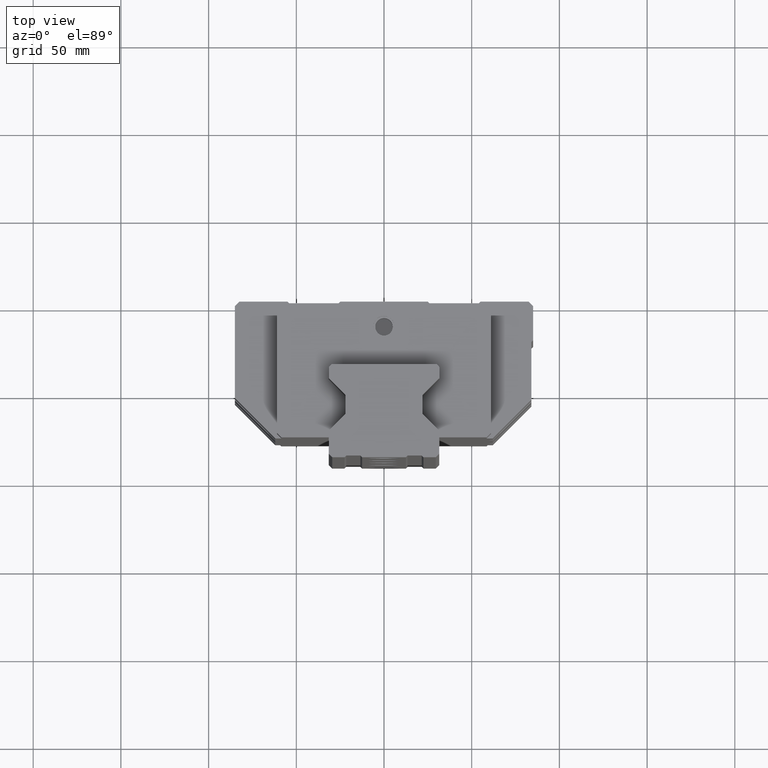
[diagram: clean part render]
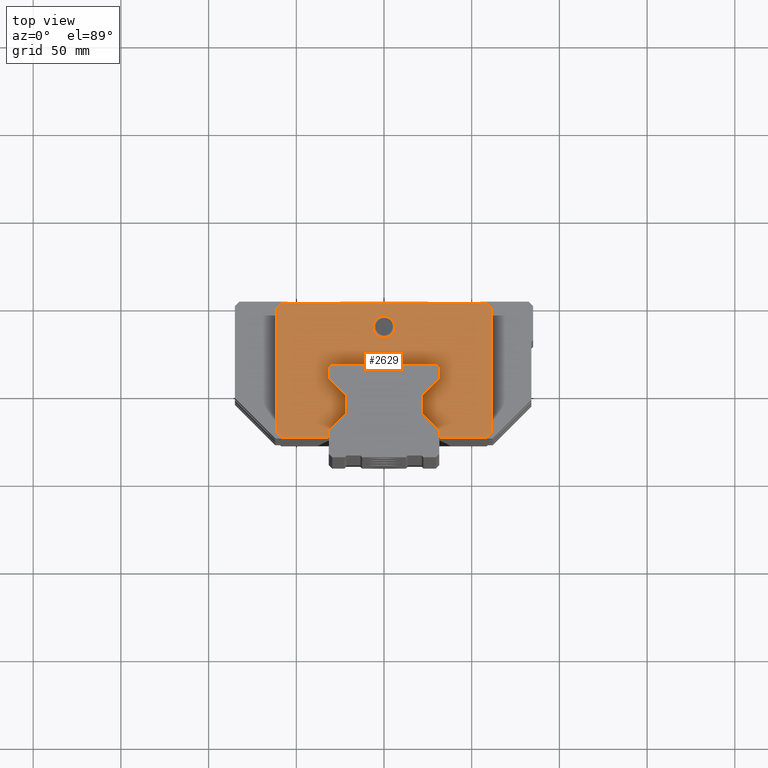
[diagram: same view with one face highlighted and labeled with its STEP entity id]
A machine part, top view. The second image highlights one B-rep face of the part: STEP entity #2629.
In plain terms, the highlighted planar face has unit normal (0, 0, 1).
Its self-contained STEP definition (entity closure, byte-faithful):
#197=DIRECTION('',(-1.162706424973E-14,-1.E0,0.E0));
#198=VECTOR('',#197,7.1499992E1);
#199=CARTESIAN_POINT('',(-6.100006E1,-3.999999999996E0,1.475E2));
#200=LINE('',#199,#198);
#257=DIRECTION('',(-1.E0,3.914247843230E-14,0.E0));
#258=VECTOR('',#257,1.17E2);
#259=CARTESIAN_POINT('',(5.849994E1,-1.500000000002E0,1.475E2));
#260=LINE('',#259,#258);
#409=DIRECTION('',(7.071067811866E-1,-7.071067811865E-1,0.E0));
#410=VECTOR('',#409,3.535533905932E0);
#411=CARTESIAN_POINT('',(5.849994E1,-1.500000000002E0,1.475E2));
#412=LINE('',#411,#410);
#413=DIRECTION('',(-7.071067811865E-1,-7.071067811866E-1,0.E0));
#414=VECTOR('',#413,3.535533905931E0);
#415=CARTESIAN_POINT('',(6.099994E1,-7.5499992E1,1.475E2));
#416=LINE('',#415,#414);
#417=DIRECTION('',(-7.071067693190E-1,7.071067930541E-1,0.E0));
#418=VECTOR('',#417,1.343502940587E1);
#419=CARTESIAN_POINT('',(3.149994018310E1,-7.478096104164E1,1.475E2));
#420=LINE('',#419,#418);
#421=DIRECTION('',(7.071067808142E-1,7.071067815589E-1,0.E0));
#422=VECTOR('',#421,1.343502873807E1);
#423=CARTESIAN_POINT('',(2.199993994421E1,-5.431902284949E1,1.475E2));
#424=LINE('',#423,#422);
#425=CARTESIAN_POINT('',(3.049994E1,-3.891421356237E1,1.475E2));
#426=DIRECTION('',(0.E0,0.E0,1.E0));
#427=DIRECTION('',(9.999999999991E-1,1.315158655757E-6,0.E0));
#428=AXIS2_PLACEMENT_3D('',#425,#426,#427);
#430=DIRECTION('',(-7.071098320872E-1,7.071037302727E-1,3.329743338022E-14));
#431=VECTOR('',#430,1.707141154446E0);
#432=CARTESIAN_POINT('',(3.120704678120E1,-3.820710678120E1,1.475E2));
#433=LINE('',#432,#431);
#434=DIRECTION('',(-7.071037303086E-1,-7.071098320513E-1,-3.329705027528E-14));
#435=VECTOR('',#434,1.707160796253E0);
#436=CARTESIAN_POINT('',(-3.000002701392E1,-3.699995659726E1,1.475E2));
#437=LINE('',#436,#435);
#438=CARTESIAN_POINT('',(-3.050006E1,-3.891421356237E1,1.475E2));
#439=DIRECTION('',(0.E0,0.E0,1.E0));
#440=DIRECTION('',(-7.071067811722E-1,7.071067812009E-1,0.E0));
#441=AXIS2_PLACEMENT_3D('',#438,#439,#440);
#443=DIRECTION('',(7.071067808141E-1,-7.071067815590E-1,0.E0));
#444=VECTOR('',#443,1.343502873807E1);
#445=CARTESIAN_POINT('',(-3.150005986533E1,-4.481902291836E1,1.475E2));
#446=LINE('',#445,#444);
#447=DIRECTION('',(-7.071068016126E-1,-7.071067607605E-1,0.E0));
#448=VECTOR('',#447,1.343503046467E1);
#449=CARTESIAN_POINT('',(-2.200005994421E1,-6.528096048387E1,1.475E2));
#450=LINE('',#449,#448);
#451=DIRECTION('',(-7.071067811866E-1,7.071067811865E-1,0.E0));
#452=VECTOR('',#451,3.535533905933E0);
#453=CARTESIAN_POINT('',(-5.850006E1,-7.7999992E1,1.475E2));
#454=LINE('',#453,#452);
#455=DIRECTION('',(7.071067811865E-1,7.071067811865E-1,0.E0));
#456=VECTOR('',#455,3.535533905931E0);
#457=CARTESIAN_POINT('',(-6.100006E1,-3.999999999996E0,1.475E2));
#458=LINE('',#457,#456);
#459=CARTESIAN_POINT('',(1.044060307818E-12,-1.5E1,1.475E2));
#460=DIRECTION('',(0.E0,0.E0,1.E0));
#461=DIRECTION('',(-9.999999999995E-1,1.041666951664E-6,0.E0));
#462=AXIS2_PLACEMENT_3D('',#459,#460,#461);
#464=CARTESIAN_POINT('',(1.044060307818E-12,-1.5E1,1.475E2));
#465=DIRECTION('',(0.E0,0.E0,1.E0));
#466=DIRECTION('',(9.999999999995E-1,-1.041666951949E-6,0.E0));
#467=AXIS2_PLACEMENT_3D('',#464,#465,#466);
#481=DIRECTION('',(2.037220659141E-14,1.E0,0.E0));
#482=VECTOR('',#481,7.1499992E1);
#483=CARTESIAN_POINT('',(6.099994E1,-7.5499992E1,1.475E2));
#484=LINE('',#483,#482);
#533=DIRECTION('',(1.E0,-1.631616645668E-14,0.E0));
#534=VECTOR('',#533,2.700000011282E1);
#535=CARTESIAN_POINT('',(3.149993988718E1,-7.7999992E1,1.475E2));
#536=LINE('',#535,#534);
#563=DIRECTION('',(-9.193066912146E-8,-1.E0,-1.765854991648E-14));
#564=VECTOR('',#563,3.219030958356E0);
#565=CARTESIAN_POINT('',(3.149994018310E1,-7.478096104164E1,1.475E2));
#566=LINE('',#565,#564);
#579=DIRECTION('',(5.866126932214E-14,-1.E0,0.E0));
#580=VECTOR('',#579,1.096193763438E1);
#581=CARTESIAN_POINT('',(2.199993994421E1,-5.431902284949E1,1.475E2));
#582=LINE('',#581,#580);
#595=DIRECTION('',(-1.791974412617E-8,-1.E0,0.E0));
#596=VECTOR('',#595,5.904809830910E0);
#597=CARTESIAN_POINT('',(3.149993997114E1,-3.891421308745E1,1.475E2));
#598=LINE('',#597,#596);
#647=DIRECTION('',(9.999999999999E-1,-4.050925794783E-7,0.E0));
#648=VECTOR('',#647,5.999993750005E1);
#649=CARTESIAN_POINT('',(-3.000002701392E1,-3.699995659726E1,1.475E2));
#650=LINE('',#649,#648);
#719=DIRECTION('',(-1.791957675257E-8,1.E0,0.E0));
#720=VECTOR('',#719,5.904809867457E0);
#721=CARTESIAN_POINT('',(-3.150005986533E1,-4.481902291836E1,1.475E2));
#722=LINE('',#721,#720);
#735=DIRECTION('',(-5.250345652037E-14,1.E0,0.E0));
#736=VECTOR('',#735,1.096193763438E1);
#737=CARTESIAN_POINT('',(-2.200005994421E1,-6.528096048387E1,1.475E2));
#738=LINE('',#737,#736);
#751=DIRECTION('',(-6.248479128125E-7,9.999999999998E-1,2.648782746519E-14));
#752=VECTOR('',#751,3.219030643538E0);
#753=CARTESIAN_POINT('',(-3.150005935425E1,-7.7999992E1,1.475E2));
#754=LINE('',#753,#752);
#793=DIRECTION('',(1.E0,1.157921467619E-14,0.E0));
#794=VECTOR('',#793,2.700000064575E1);
#795=CARTESIAN_POINT('',(-5.850006E1,-7.7999992E1,1.475E2));
#796=LINE('',#795,#794);
#1713=CARTESIAN_POINT('',(-3.150005935425E1,-7.7999992E1,1.475E2));
#1714=VERTEX_POINT('',#1713);
#1727=CARTESIAN_POINT('',(-5.850006E1,-7.7999992E1,1.475E2));
#1728=VERTEX_POINT('',#1727);
#1729=CARTESIAN_POINT('',(-3.150006136565E1,-7.478096135646E1,1.475E2));
#1730=VERTEX_POINT('',#1729);
#1731=CARTESIAN_POINT('',(-2.200005994421E1,-6.528096048387E1,1.475E2));
#1732=VERTEX_POINT('',#1731);
#1733=CARTESIAN_POINT('',(-2.200005994421E1,-5.431902284949E1,1.475E2));
#1734=VERTEX_POINT('',#1733);
#1735=CARTESIAN_POINT('',(-3.150005986533E1,-4.481902291836E1,1.475E2));
#1736=VERTEX_POINT('',#1735);
#1741=CARTESIAN_POINT('',(-3.150005997114E1,-3.891421305091E1,1.475E2));
#1742=VERTEX_POINT('',#1741);
#1751=CARTESIAN_POINT('',(-3.120716678117E1,-3.820710678117E1,1.475E2));
#1752=VERTEX_POINT('',#1751);
#1757=CARTESIAN_POINT('',(-3.000002701392E1,-3.699995659726E1,1.475E2));
#1758=VERTEX_POINT('',#1757);
#1759=CARTESIAN_POINT('',(2.999991048613E1,-3.699998090279E1,1.475E2));
#1760=VERTEX_POINT('',#1759);
#1809=CARTESIAN_POINT('',(3.149993988718E1,-7.7999992E1,1.475E2));
#1810=VERTEX_POINT('',#1809);
#1811=CARTESIAN_POINT('',(5.849994E1,-7.7999992E1,1.475E2));
#1812=VERTEX_POINT('',#1811);
#1823=CARTESIAN_POINT('',(3.149994018310E1,-7.478096104164E1,1.475E2));
#1824=VERTEX_POINT('',#1823);
#1825=CARTESIAN_POINT('',(2.199993994421E1,-6.528096048387E1,1.475E2));
#1826=VERTEX_POINT('',#1825);
#1827=CARTESIAN_POINT('',(2.199993994421E1,-5.431902284949E1,1.475E2));
#1828=VERTEX_POINT('',#1827);
#1829=CARTESIAN_POINT('',(3.149993986533E1,-4.481902291836E1,1.475E2));
#1830=VERTEX_POINT('',#1829);
#1839=CARTESIAN_POINT('',(3.149993997114E1,-3.891421308745E1,1.475E2));
#1840=VERTEX_POINT('',#1839);
#1849=CARTESIAN_POINT('',(3.120704678120E1,-3.820710678120E1,1.475E2));
#1850=VERTEX_POINT('',#1849);
#1851=CARTESIAN_POINT('',(5.849994E1,-1.500000000002E0,1.475E2));
#1852=CARTESIAN_POINT('',(6.099994E1,-4.000000000001E0,1.475E2));
#1853=VERTEX_POINT('',#1851);
#1854=VERTEX_POINT('',#1852);
#1855=CARTESIAN_POINT('',(6.099994E1,-7.5499992E1,1.475E2));
#1856=VERTEX_POINT('',#1855);
#1857=CARTESIAN_POINT('',(-6.100006E1,-7.5499992E1,1.475E2));
#1858=VERTEX_POINT('',#1857);
#1859=CARTESIAN_POINT('',(-6.100006E1,-3.999999999996E0,1.475E2));
#1860=VERTEX_POINT('',#1859);
#1861=CARTESIAN_POINT('',(-5.850006E1,-1.499999999997E0,1.475E2));
#1862=VERTEX_POINT('',#1861);
#1863=CARTESIAN_POINT('',(-6.249999999996E0,-1.499999348958E1,1.475E2));
#1864=CARTESIAN_POINT('',(6.249999999998E0,-1.500000651042E1,1.475E2));
#1865=VERTEX_POINT('',#1863);
#1866=VERTEX_POINT('',#1864);
#2572=CARTESIAN_POINT('',(5.849994E1,-1.499999999999E0,1.475E2));
#2573=DIRECTION('',(0.E0,0.E0,1.E0));
#2574=DIRECTION('',(1.E0,-4.416675494117E-14,0.E0));
#2575=AXIS2_PLACEMENT_3D('',#2572,#2573,#2574);
#2576=PLANE('',#2575);
#2578=ORIENTED_EDGE('',*,*,#2577,.T.);
#2580=ORIENTED_EDGE('',*,*,#2579,.F.);
#2582=ORIENTED_EDGE('',*,*,#2581,.T.);
#2584=ORIENTED_EDGE('',*,*,#2583,.F.);
#2586=ORIENTED_EDGE('',*,*,#2585,.F.);
#2588=ORIENTED_EDGE('',*,*,#2587,.T.);
#2590=ORIENTED_EDGE('',*,*,#2589,.F.);
#2592=ORIENTED_EDGE('',*,*,#2591,.T.);
#2594=ORIENTED_EDGE('',*,*,#2593,.F.);
#2596=ORIENTED_EDGE('',*,*,#2595,.T.);
#2598=ORIENTED_EDGE('',*,*,#2597,.T.);
#2600=ORIENTED_EDGE('',*,*,#2599,.F.);
#2602=ORIENTED_EDGE('',*,*,#2601,.T.);
#2604=ORIENTED_EDGE('',*,*,#2603,.T.);
#2606=ORIENTED_EDGE('',*,*,#2605,.F.);
#2608=ORIENTED_EDGE('',*,*,#2607,.T.);
#2610=ORIENTED_EDGE('',*,*,#2609,.F.);
#2612=ORIENTED_EDGE('',*,*,#2611,.T.);
#2614=ORIENTED_EDGE('',*,*,#2613,.F.);
#2616=ORIENTED_EDGE('',*,*,#2615,.F.);
#2617=ORIENTED_EDGE('',*,*,#2564,.T.);
#2618=ORIENTED_EDGE('',*,*,#2281,.F.);
#2619=ORIENTED_EDGE('',*,*,#2322,.T.);
#2620=ORIENTED_EDGE('',*,*,#2348,.F.);
#2621=EDGE_LOOP('',(#2578,#2580,#2582,#2584,#2586,#2588,#2590,#2592,#2594,#2596,
#2598,#2600,#2602,#2604,#2606,#2608,#2610,#2612,#2614,#2616,#2617,#2618,#2619,
#2620));
#2622=FACE_OUTER_BOUND('',#2621,.F.);
#2624=ORIENTED_EDGE('',*,*,#2623,.T.);
#2626=ORIENTED_EDGE('',*,*,#2625,.T.);
#2627=EDGE_LOOP('',(#2624,#2626));
#2628=FACE_BOUND('',#2627,.F.);
#2629=ADVANCED_FACE('',(#2622,#2628),#2576,.T.);
#429=CIRCLE('',#428,1.E0);
#442=CIRCLE('',#441,1.E0);
#463=CIRCLE('',#462,6.25E0);
#468=CIRCLE('',#467,6.25E0);
#2281=EDGE_CURVE('',#1860,#1858,#200,.T.);
#2322=EDGE_CURVE('',#1860,#1862,#458,.T.);
#2348=EDGE_CURVE('',#1853,#1862,#260,.T.);
#2564=EDGE_CURVE('',#1728,#1858,#454,.T.);
#2577=EDGE_CURVE('',#1853,#1854,#412,.T.);
#2579=EDGE_CURVE('',#1856,#1854,#484,.T.);
#2581=EDGE_CURVE('',#1856,#1812,#416,.T.);
#2583=EDGE_CURVE('',#1810,#1812,#536,.T.);
#2585=EDGE_CURVE('',#1824,#1810,#566,.T.);
#2587=EDGE_CURVE('',#1824,#1826,#420,.T.);
#2589=EDGE_CURVE('',#1828,#1826,#582,.T.);
#2591=EDGE_CURVE('',#1828,#1830,#424,.T.);
#2593=EDGE_CURVE('',#1840,#1830,#598,.T.);
#2595=EDGE_CURVE('',#1840,#1850,#429,.T.);
#2597=EDGE_CURVE('',#1850,#1760,#433,.T.);
#2599=EDGE_CURVE('',#1758,#1760,#650,.T.);
#2601=EDGE_CURVE('',#1758,#1752,#437,.T.);
#2603=EDGE_CURVE('',#1752,#1742,#442,.T.);
#2605=EDGE_CURVE('',#1736,#1742,#722,.T.);
#2607=EDGE_CURVE('',#1736,#1734,#446,.T.);
#2609=EDGE_CURVE('',#1732,#1734,#738,.T.);
#2611=EDGE_CURVE('',#1732,#1730,#450,.T.);
#2613=EDGE_CURVE('',#1714,#1730,#754,.T.);
#2615=EDGE_CURVE('',#1728,#1714,#796,.T.);
#2623=EDGE_CURVE('',#1865,#1866,#463,.T.);
#2625=EDGE_CURVE('',#1866,#1865,#468,.T.);